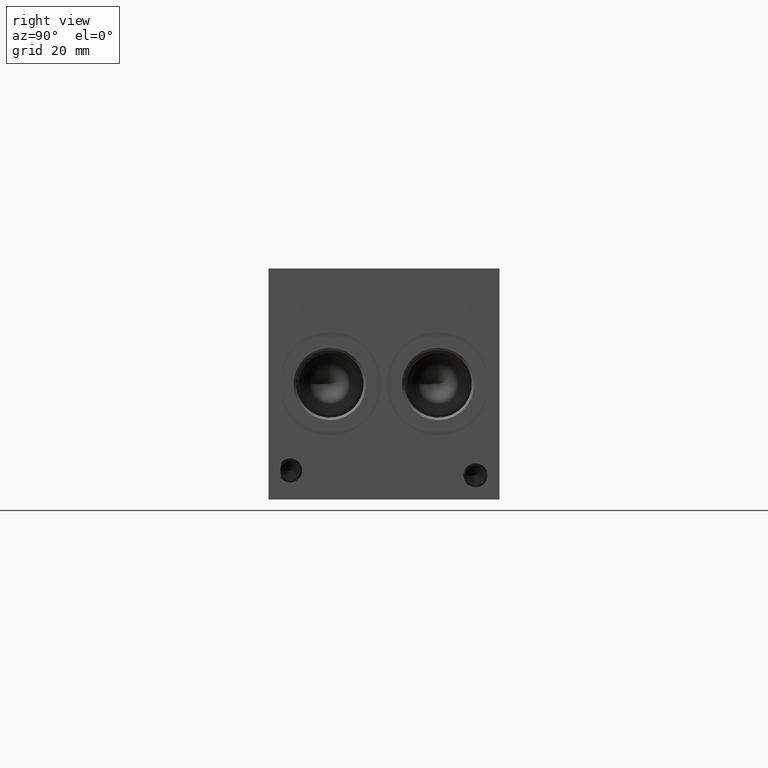
[diagram: clean part render]
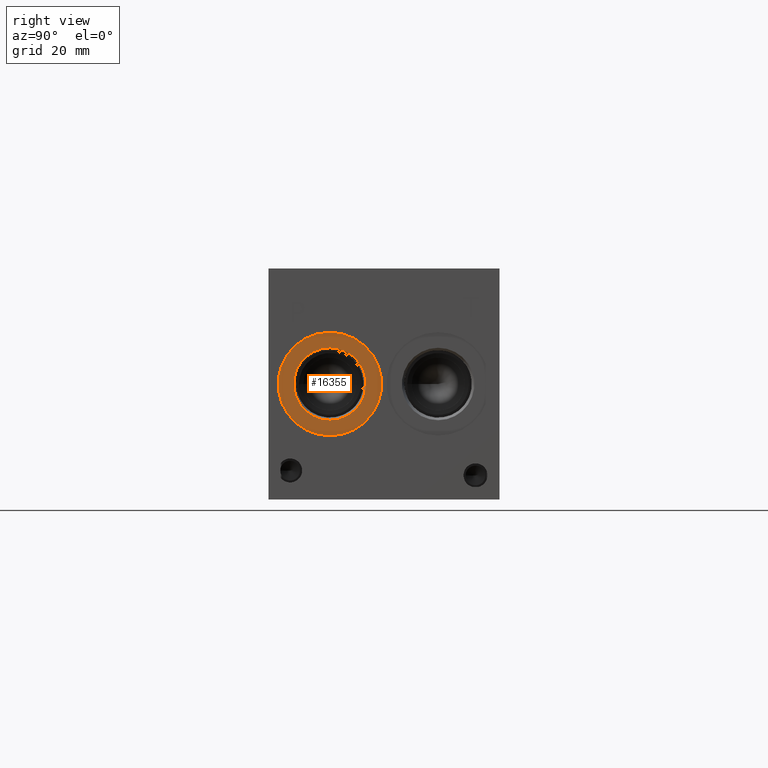
[diagram: same view with one face highlighted and labeled with its STEP entity id]
A machine part, right view. The second image highlights one B-rep face of the part: STEP entity #16355.
In plain terms, the highlighted planar face has unit normal (-1, 0, 0).
Its self-contained STEP definition (entity closure, byte-faithful):
#326=CIRCLE('',#17122,17.0688);
#327=CIRCLE('',#17123,17.0688);
#328=CIRCLE('',#17125,11.9507);
#329=CIRCLE('',#17126,11.9507);
#815=FACE_BOUND('',#3039,.T.);
#2095=FACE_OUTER_BOUND('',#3038,.T.);
#3038=EDGE_LOOP('',(#13459,#13460));
#3039=EDGE_LOOP('',(#13461,#13462));
#7358=VERTEX_POINT('',#27531);
#7359=VERTEX_POINT('',#27533);
#7360=VERTEX_POINT('',#27537);
#7361=VERTEX_POINT('',#27538);
#9513=EDGE_CURVE('',#7358,#7359,#326,.T.);
#9514=EDGE_CURVE('',#7359,#7358,#327,.T.);
#9515=EDGE_CURVE('',#7360,#7361,#328,.T.);
#9516=EDGE_CURVE('',#7361,#7360,#329,.T.);
#13459=ORIENTED_EDGE('',*,*,#9514,.F.);
#13460=ORIENTED_EDGE('',*,*,#9513,.F.);
#13461=ORIENTED_EDGE('',*,*,#9515,.T.);
#13462=ORIENTED_EDGE('',*,*,#9516,.T.);
#15134=PLANE('',#17124);
#16355=ADVANCED_FACE('',(#2095,#815),#15134,.F.);
#17122=AXIS2_PLACEMENT_3D('',#27534,#20005,#20006);
#17123=AXIS2_PLACEMENT_3D('',#27535,#20007,#20008);
#17124=AXIS2_PLACEMENT_3D('',#27536,#20009,#20010);
#17125=AXIS2_PLACEMENT_3D('',#27539,#20011,#20012);
#17126=AXIS2_PLACEMENT_3D('',#27540,#20013,#20014);
#20005=DIRECTION('center_axis',(-1.,0.,0.));
#20006=DIRECTION('ref_axis',(0.,0.,1.));
#20007=DIRECTION('center_axis',(-1.,0.,0.));
#20008=DIRECTION('ref_axis',(0.,0.,1.));
#20009=DIRECTION('center_axis',(-1.,0.,0.));
#20010=DIRECTION('ref_axis',(0.,0.,1.));
#20011=DIRECTION('center_axis',(-1.,0.,0.));
#20012=DIRECTION('ref_axis',(0.,0.,1.));
#20013=DIRECTION('center_axis',(-1.,0.,0.));
#20014=DIRECTION('ref_axis',(0.,0.,1.));
#27531=CARTESIAN_POINT('',(215.1126,20.2438,55.1688));
#27533=CARTESIAN_POINT('',(215.1126,20.2438,21.0312));
#27534=CARTESIAN_POINT('Origin',(215.1126,20.2438,38.1));
#27535=CARTESIAN_POINT('Origin',(215.1126,20.2438,38.1));
#27536=CARTESIAN_POINT('Origin',(215.1126,20.2438,26.1493));
#27537=CARTESIAN_POINT('',(215.1126,20.2438,26.1493));
#27538=CARTESIAN_POINT('',(215.1126,20.2438,50.0507));
#27539=CARTESIAN_POINT('Origin',(215.1126,20.2438,38.1));
#27540=CARTESIAN_POINT('Origin',(215.1126,20.2438,38.1));